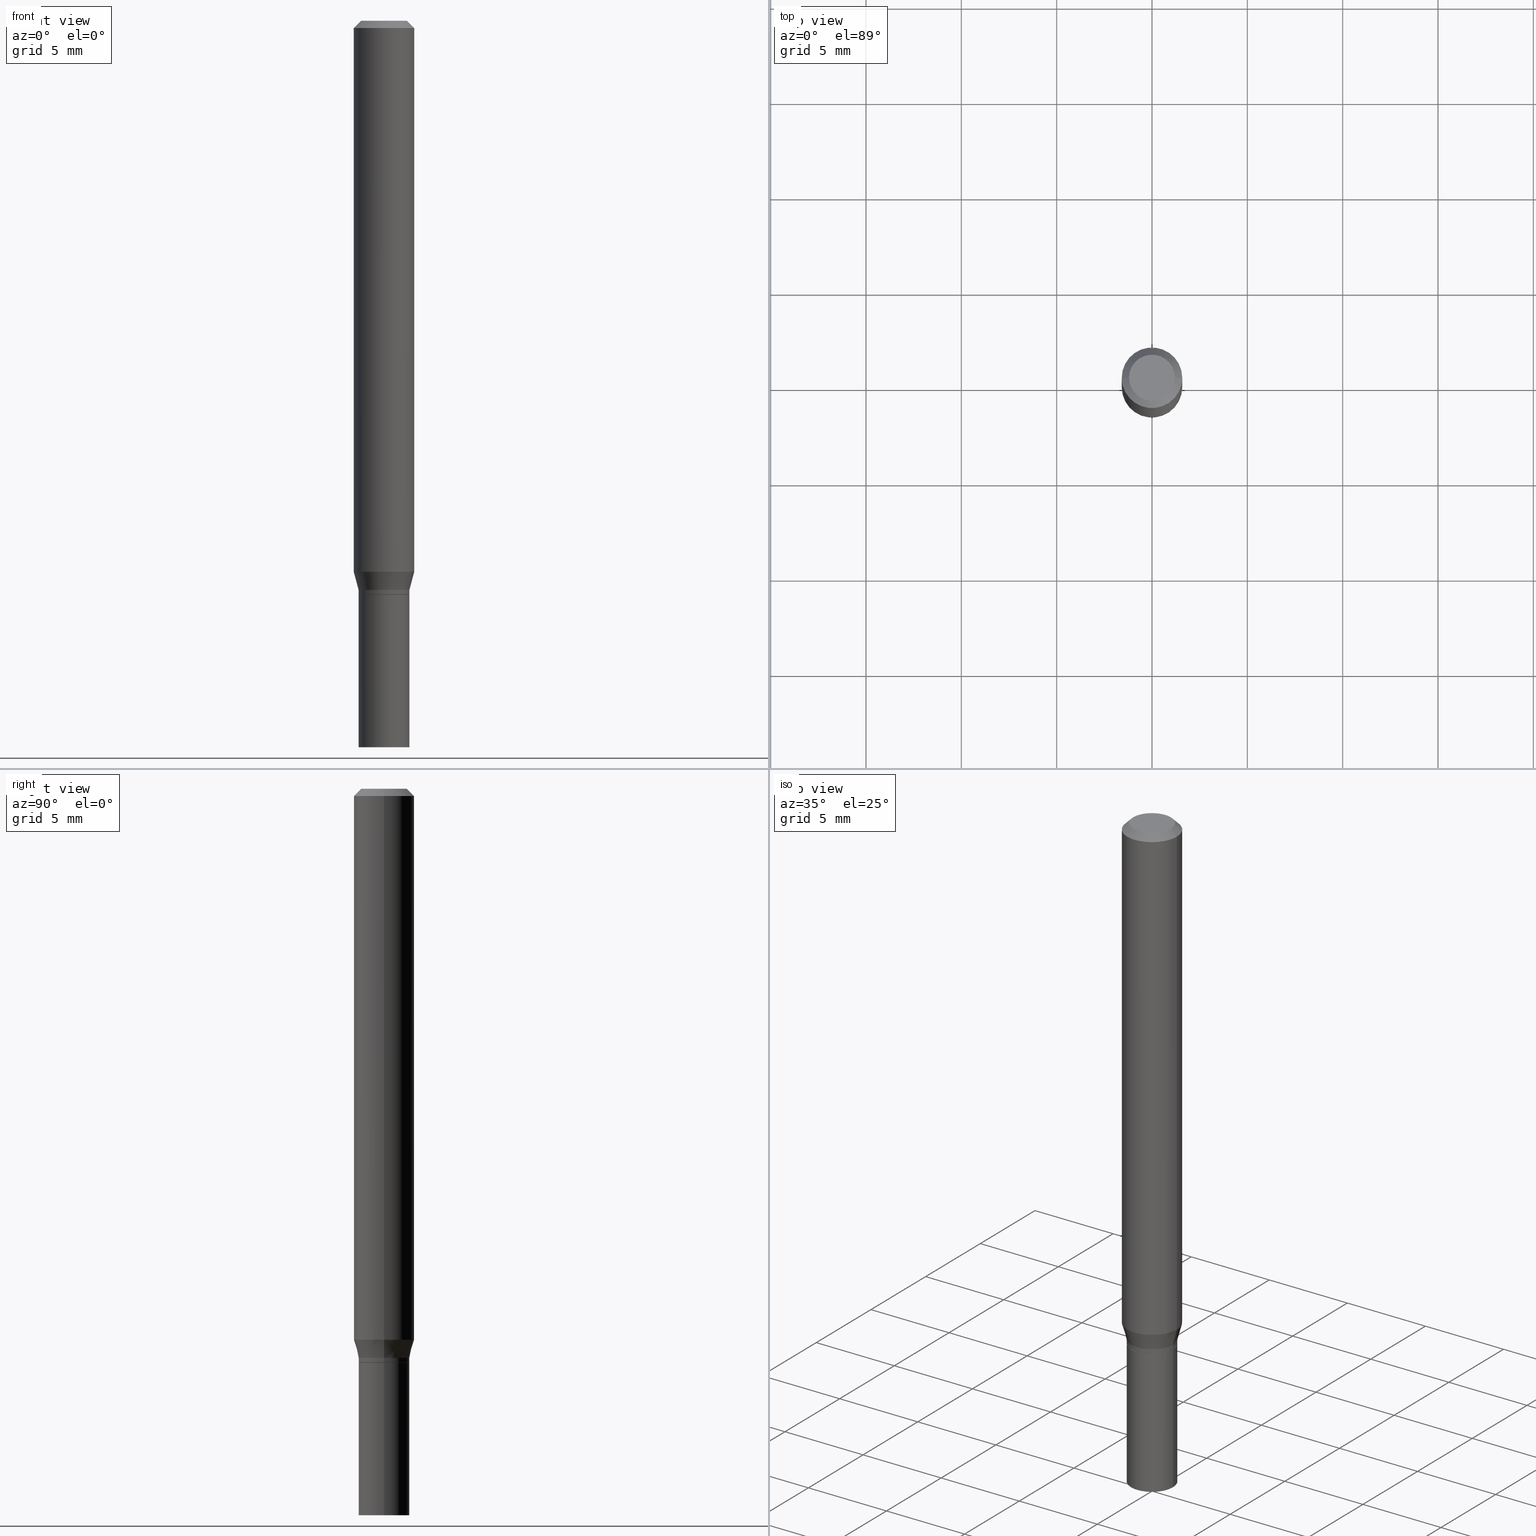
[diagram: canonical four-view strip — front | top / right | iso, engineering-drawing reading convention]
A machine part, canonical four-view strip (front | top / right | iso — engineering-drawing reading convention). The complete STEP part file that produces these views, byte-faithful:
ISO-10303-21;
HEADER;
FILE_DESCRIPTION (( 'STEP AP203' ),
    '1' );
FILE_NAME ('00580.STEP',
    '2024-03-19T21:49:55',
    ( '' ),
    ( '' ),
    'SwSTEP 2.0',
    'SolidWorks 2023',
    '' );
FILE_SCHEMA (( 'CONFIG_CONTROL_DESIGN' ));
ENDSEC;

DATA;
#1 = CARTESIAN_POINT ( 'NONE',  ( 3.668203209277705088E-31, -5.237222008264718399E-17, -0.01499999999999999944 ) ) ;
#2 = CC_DESIGN_PERSON_AND_ORGANIZATION_ASSIGNMENT ( #437, #71, ( #35 ) ) ;
#3 = PERSON_AND_ORGANIZATION_ROLE ( 'creator' ) ;
#4 = DIRECTION ( 'NONE',  ( 1.000000000000000000, -6.982962677686258822E-15, 0.000000000000000000 ) ) ;
#5 = CONICAL_SURFACE ( 'NONE', #410, 0.06250000000000000000, 0.7853981633974549403 ) ;
#6 = AXIS2_PLACEMENT_3D ( 'NONE', #274, #375, #200 ) ;
#7 = DIRECTION ( 'NONE',  ( -1.000000000000000000, 6.982962677686266711E-15, 0.000000000000000000 ) ) ;
#8 = DESIGN_CONTEXT ( 'detailed design', #392, 'design' ) ;
#9 = VECTOR ( 'NONE', #301, 39.37007874015748854 ) ;
#10 = PRODUCT_DEFINITION_FORMATION_WITH_SPECIFIED_SOURCE ( 'ANY', '', #97, .NOT_KNOWN. ) ;
#11 = DIRECTION ( 'NONE',  ( -2.438088387897960049E-29, 3.491481338843145188E-15, 1.000000000000000000 ) ) ;
#12 = CARTESIAN_POINT ( 'NONE',  ( 0.000000000000000000, 0.000000000000000000, 0.000000000000000000 ) ) ;
#13 = PLANE ( 'NONE',  #349 ) ;
#14 = ORIENTED_EDGE ( 'NONE', *, *, #134, .F. ) ;
#15 = CARTESIAN_POINT ( 'NONE',  ( 2.782159708937459233E-29, -3.972186715638284874E-15, -1.137679491924311614 ) ) ;
#16 = CARTESIAN_POINT ( 'NONE',  ( 0.04749999999999999362, -4.035134999187581581E-16, -1.989643822619502098E-16 ) ) ;
#17 = CIRCLE ( 'NONE', #225, 0.05249999999999999806 ) ;
#18 = LOCAL_TIME ( 17, 49, 55.00000000000000000, #140 ) ;
#19 = CYLINDRICAL_SURFACE ( 'NONE', #115, 0.05250000000000005357 ) ;
#20 = DIRECTION ( 'NONE',  ( -2.445468806185136877E-29, 3.491481338843145188E-15, 1.000000000000000000 ) ) ;
#21 = DIRECTION ( 'NONE',  ( -2.445468806185136597E-29, 3.491481338843145583E-15, 1.000000000000000000 ) ) ;
#22 = DIRECTION ( 'NONE',  ( 1.000000000000000000, -6.982962677686266711E-15, 0.000000000000000000 ) ) ;
#23 = ORIENTED_EDGE ( 'NONE', *, *, #77, .F. ) ;
#24 = EDGE_CURVE ( 'NONE', #138, #219, #378, .T. ) ;
#25 = DIRECTION ( 'NONE',  ( 2.438088387897960049E-29, -3.491481338843145188E-15, -1.000000000000000000 ) ) ;
#26 = AXIS2_PLACEMENT_3D ( 'NONE', #188, #177, #336 ) ;
#27 = PERSON ( 'UNSPECIFIED', 'UNSPECIFIED', 'UNSPECIFIED', ('UNSPECIFIED'), ('UNSPECIFIED'), ('UNSPECIFIED') ) ;
#28 = AXIS2_PLACEMENT_3D ( 'NONE', #217, #99, #214 ) ;
#29 = PLANE ( 'NONE',  #59 ) ;
#30 = DIRECTION ( 'NONE',  ( 1.000000000000000000, -6.982962677686258822E-15, 0.000000000000000000 ) ) ;
#31 = APPROVAL ( #358, 'UNSPECIFIED' ) ;
#32 = DATE_TIME_ROLE ( 'classification_date' ) ;
#33 = AXIS2_PLACEMENT_3D ( 'NONE', #1, #258, #364 ) ;
#34 = ORIENTED_EDGE ( 'NONE', *, *, #444, .F. ) ;
#35 = SECURITY_CLASSIFICATION ( '', '', #431 ) ;
#36 = APPLICATION_PROTOCOL_DEFINITION ( 'international standard', 'config_control_design', 1994, #404 ) ;
#37 = DIRECTION ( 'NONE',  ( 2.445468806185136597E-29, -3.491481338843145583E-15, -1.000000000000000000 ) ) ;
#38 = ORIENTED_EDGE ( 'NONE', *, *, #345, .T. ) ;
#39 = EDGE_CURVE ( 'NONE', #205, #180, #160, .T. ) ;
#40 =( NAMED_UNIT ( * ) SI_UNIT ( $, .STERADIAN. ) SOLID_ANGLE_UNIT ( ) );
#41 = DIRECTION ( 'NONE',  ( 1.000000000000000000, -6.982962677686269866E-15, 0.000000000000000000 ) ) ;
#42 =( NAMED_UNIT ( * ) PLANE_ANGLE_UNIT ( ) SI_UNIT ( $, .RADIAN. ) );
#43 = CARTESIAN_POINT ( 'NONE',  ( 2.873425847267535838E-29, -4.102490573140696681E-15, -1.175000000000000266 ) ) ;
#44 = ORIENTED_EDGE ( 'NONE', *, *, #324, .F. ) ;
#45 = CIRCLE ( 'NONE', #26, 0.05199999999999999067 ) ;
#46 = ORIENTED_EDGE ( 'NONE', *, *, #347, .F. ) ;
#47 = ORIENTED_EDGE ( 'NONE', *, *, #459, .T. ) ;
#48 = EDGE_CURVE ( 'NONE', #126, #219, #461, .T. ) ;
#49 = CLOSED_SHELL ( 'NONE', ( #149, #193, #450, #408 ) ) ;
#50 = AXIS2_PLACEMENT_3D ( 'NONE', #253, #80, #191 ) ;
#51 = EDGE_LOOP ( 'NONE', ( #230, #47, #212, #34 ) ) ;
#52 = DIRECTION ( 'NONE',  ( 1.000000000000000000, -6.982962677686265922E-15, 4.876176775795935793E-29 ) ) ;
#53 = PRODUCT_RELATED_PRODUCT_CATEGORY ( 'detail', '', ( #97 ) ) ;
#54 = CARTESIAN_POINT ( 'NONE',  ( -0.06250000000000000000, -1.568190258010403558E-15, -0.01499999999999999944 ) ) ;
#55 = DIRECTION ( 'NONE',  ( -2.445468806185136877E-29, 3.491481338843145188E-15, 1.000000000000000000 ) ) ;
#56 = DIRECTION ( 'NONE',  ( -0.7071067811865656694, 7.493145998870420424E-15, 0.7071067811865294761 ) ) ;
#57 = DIRECTION ( 'NONE',  ( -2.445468806185136877E-29, 3.491481338843145188E-15, 1.000000000000000000 ) ) ;
#58 = PLANE ( 'NONE',  #202 ) ;
#59 = AXIS2_PLACEMENT_3D ( 'NONE', #163, #25, #423 ) ;
#60 = LOCAL_TIME ( 17, 49, 55.00000000000000000, #109 ) ;
#61 = LINE ( 'NONE', #339, #341 ) ;
#62 = ORIENTED_EDGE ( 'NONE', *, *, #296, .F. ) ;
#63 = EDGE_CURVE ( 'NONE', #318, #205, #197, .T. ) ;
#64 = FACE_OUTER_BOUND ( 'NONE', #333, .T. ) ;
#65 = VECTOR ( 'NONE', #57, 39.37007874015748143 ) ;
#66 = AXIS2_PLACEMENT_3D ( 'NONE', #380, #240, #125 ) ;
#67 = DATE_AND_TIME ( #245, #18 ) ;
#68 = PERSON_AND_ORGANIZATION ( #27, #159 ) ;
#69 = ORIENTED_EDGE ( 'NONE', *, *, #424, .F. ) ;
#70 = ORIENTED_EDGE ( 'NONE', *, *, #63, .F. ) ;
#71 = PERSON_AND_ORGANIZATION_ROLE ( 'classification_officer' ) ;
#72 = CIRCLE ( 'NONE', #305, 0.05199999999999999067 ) ;
#73 = CARTESIAN_POINT ( 'NONE',  ( -0.05249999999999999806, -4.314278761122870719E-15, -1.500000000000000222 ) ) ;
#74 = ORIENTED_EDGE ( 'NONE', *, *, #48, .T. ) ;
#75 = DIRECTION ( 'NONE',  ( -0.2588190451025211836, 5.211531920934547886E-15, 0.9659258262890679791 ) ) ;
#76 = CALENDAR_DATE ( 2024, 19, 3 ) ;
#77 = EDGE_CURVE ( 'NONE', #247, #340, #435, .T. ) ;
#78 = DIRECTION ( 'NONE',  ( -2.445468806185136597E-29, 3.491481338843145583E-15, 1.000000000000000000 ) ) ;
#79 = DIRECTION ( 'NONE',  ( -2.445468806185136597E-29, 3.491481338843145583E-15, 1.000000000000000000 ) ) ;
#80 = DIRECTION ( 'NONE',  ( -2.445468806185136597E-29, 3.491481338843145583E-15, 1.000000000000000000 ) ) ;
#81 = ORIENTED_EDGE ( 'NONE', *, *, #223, .T. ) ;
#82 = DIRECTION ( 'NONE',  ( 1.000000000000000000, -6.982962677686268288E-15, 0.000000000000000000 ) ) ;
#83 = CONICAL_SURFACE ( 'NONE', #6, 0.05250000000000004663, 0.2617993877991499074 ) ;
#84 = CC_DESIGN_DATE_AND_TIME_ASSIGNMENT ( #458, #426, ( #261 ) ) ;
#85 = ORIENTED_EDGE ( 'NONE', *, *, #429, .F. ) ;
#86 = CARTESIAN_POINT ( 'NONE',  ( 2.897880535329387383E-29, -4.137405386529128330E-15, -1.185000000000000275 ) ) ;
#87 = ORIENTED_EDGE ( 'NONE', *, *, #384, .T. ) ;
#88 = DIRECTION ( 'NONE',  ( -2.445468806185136597E-29, 3.491481338843145583E-15, 1.000000000000000000 ) ) ;
#89 = CARTESIAN_POINT ( 'NONE',  ( 0.05199999999999999067, -4.500519445768813694E-15, -1.185000000000000275 ) ) ;
#90 = LINE ( 'NONE', #267, #65 ) ;
#91 = CARTESIAN_POINT ( 'NONE',  ( -0.05249999999999999806, 3.730349362740525838E-16, -2.582440922383825311E-30 ) ) ;
#92 = LINE ( 'NONE', #166, #277 ) ;
#93 = VERTEX_POINT ( 'NONE', #312 ) ;
#94 = EDGE_CURVE ( 'NONE', #318, #168, #90, .T. ) ;
#95 = DIRECTION ( 'NONE',  ( 1.000000000000000000, -6.982962677686270655E-15, 0.000000000000000000 ) ) ;
#96 = DIRECTION ( 'NONE',  ( 0.7071067811865656694, -2.468850131082446387E-15, 0.7071067811865294761 ) ) ;
#97 = PRODUCT ( '00580', '00580', '', ( #136 ) ) ;
#98 = FACE_OUTER_BOUND ( 'NONE', #145, .T. ) ;
#99 = DIRECTION ( 'NONE',  ( 0.000000000000000000, 0.000000000000000000, 1.000000000000000000 ) ) ;
#100 = CC_DESIGN_APPROVAL ( #376, ( #35 ) ) ;
#101 = APPROVAL_STATUS ( 'not_yet_approved' ) ;
#102 = APPROVAL_DATE_TIME ( #139, #376 ) ;
#103 = ORIENTED_EDGE ( 'NONE', *, *, #94, .T. ) ;
#104 = APPROVAL_STATUS ( 'not_yet_approved' ) ;
#105 = ADVANCED_FACE ( 'NONE', ( #196 ), #309, .T. ) ;
#106 = CARTESIAN_POINT ( 'NONE',  ( 0.06250000000000000000, -4.408621882993677332E-15, -1.137679491924311614 ) ) ;
#107 = CIRCLE ( 'NONE', #297, 0.05250000000000005357 ) ;
#108 = DIRECTION ( 'NONE',  ( -2.445468806185136597E-29, 3.491481338843145583E-15, 1.000000000000000000 ) ) ;
#109 = COORDINATED_UNIVERSAL_TIME_OFFSET ( 5, 0, .BEHIND. ) ;
#110 = DIRECTION ( 'NONE',  ( 1.000000000000000000, -6.982962677686261977E-15, 0.000000000000000000 ) ) ;
#111 = CARTESIAN_POINT ( 'NONE',  ( 2.897880535329387383E-29, -4.137405386529128330E-15, -1.185000000000000275 ) ) ;
#112 = CC_DESIGN_PERSON_AND_ORGANIZATION_ASSIGNMENT ( #137, #291, ( #97 ) ) ;
#113 = ORIENTED_EDGE ( 'NONE', *, *, #459, .F. ) ;
#114 = CLOSED_SHELL ( 'NONE', ( #164, #154, #416, #462, #185, #457, #271, #207, #370, #190, #174, #105 ) ) ;
#115 = AXIS2_PLACEMENT_3D ( 'NONE', #233, #21, #386 ) ;
#116 = ORIENTED_EDGE ( 'NONE', *, *, #332, .T. ) ;
#117 = DIRECTION ( 'NONE',  ( 1.000000000000000000, -6.982962677686268288E-15, 0.000000000000000000 ) ) ;
#118 = CARTESIAN_POINT ( 'NONE',  ( 0.06250000000000000000, -4.364351673553916694E-16, 3.047610484872459871E-30 ) ) ;
#119 = VECTOR ( 'NONE', #231, 39.37007874015748143 ) ;
#120 = AXIS2_PLACEMENT_3D ( 'NONE', #229, #122, #232 ) ;
#121 = CC_DESIGN_APPROVAL ( #31, ( #261 ) ) ;
#122 = DIRECTION ( 'NONE',  ( -2.445468806185136597E-29, 3.491481338843145583E-15, 1.000000000000000000 ) ) ;
#123 = EDGE_LOOP ( 'NONE', ( #265, #302, #283, #344 ) ) ;
#124 = CARTESIAN_POINT ( 'NONE',  ( 2.897880535329387383E-29, -4.137405386529128330E-15, -1.185000000000000275 ) ) ;
#125 = DIRECTION ( 'NONE',  ( 1.000000000000000000, -6.982962677686268288E-15, 0.000000000000000000 ) ) ;
#126 = VERTEX_POINT ( 'NONE', #255 ) ;
#127 = APPROVAL ( #101, 'UNSPECIFIED' ) ;
#128 = EDGE_LOOP ( 'NONE', ( #290, #116, #280, #187 ) ) ;
#129 = DIRECTION ( 'NONE',  ( -2.445468806185136597E-29, 3.491481338843145583E-15, 1.000000000000000000 ) ) ;
#130 = CARTESIAN_POINT ( 'NONE',  ( 0.000000000000000000, 0.000000000000000000, 0.000000000000000000 ) ) ;
#131 = VECTOR ( 'NONE', #56, 39.37007874015748143 ) ;
#132 = CARTESIAN_POINT ( 'NONE',  ( 3.316907271900976096E-16, 0.04749999999999999362, -2.653275547260257586E-16 ) ) ;
#133 =( CONVERSION_BASED_UNIT ( 'INCH', #385 ) LENGTH_UNIT ( ) NAMED_UNIT ( #434 ) );
#134 = EDGE_CURVE ( 'NONE', #402, #460, #440, .T. ) ;
#135 = CARTESIAN_POINT ( 'NONE',  ( 2.897880535329387383E-29, -4.137405386529128330E-15, -1.185000000000000275 ) ) ;
#136 = MECHANICAL_CONTEXT ( 'NONE', #404, 'mechanical' ) ;
#137 = PERSON_AND_ORGANIZATION ( #27, #159 ) ;
#138 = VERTEX_POINT ( 'NONE', #106 ) ;
#139 = DATE_AND_TIME ( #76, #331 ) ;
#140 = COORDINATED_UNIVERSAL_TIME_OFFSET ( 5, 0, .BEHIND. ) ;
#141 = CARTESIAN_POINT ( 'NONE',  ( -0.05250000000000005357, -3.762624709585653503E-15, -1.184500000000000108 ) ) ;
#142 = EDGE_LOOP ( 'NONE', ( #308, #446 ) ) ;
#143 = CALENDAR_DATE ( 2024, 19, 3 ) ;
#144 = CARTESIAN_POINT ( 'NONE',  ( 3.668203209277705088E-31, -5.237222008264718399E-17, -0.01499999999999999944 ) ) ;
#145 = EDGE_LOOP ( 'NONE', ( #183, #399 ) ) ;
#146 = CONICAL_SURFACE ( 'NONE', #210, 0.05250000000000004663, 0.2617993877991499074 ) ;
#147 = LINE ( 'NONE', #451, #357 ) ;
#148 = EDGE_LOOP ( 'NONE', ( #173, #74, #337, #327 ) ) ;
#149 = ADVANCED_FACE ( 'NONE', ( #366 ), #443, .T. ) ;
#150 = FACE_OUTER_BOUND ( 'NONE', #263, .T. ) ;
#151 = CIRCLE ( 'NONE', #66, 0.05249999999999999806 ) ;
#152 = UNCERTAINTY_MEASURE_WITH_UNIT (LENGTH_MEASURE( 1.000000000000000082E-05 ), #133, 'distance_accuracy_value', 'NONE');
#153 = CIRCLE ( 'NONE', #50, 0.04749999999999999362 ) ;
#154 = ADVANCED_FACE ( 'NONE', ( #373 ), #292, .T. ) ;
#155 = CARTESIAN_POINT ( 'NONE',  ( 3.576687321579069994E-29, -5.368277968210015545E-15, -1.500000000000000222 ) ) ;
#156 = ORIENTED_EDGE ( 'NONE', *, *, #216, .F. ) ;
#157 = DIRECTION ( 'NONE',  ( -2.445468806185136597E-29, 3.491481338843145583E-15, 1.000000000000000000 ) ) ;
#158 = AXIS2_PLACEMENT_3D ( 'NONE', #218, #37, #7 ) ;
#159 = ORGANIZATION ( 'UNSPECIFIED', 'UNSPECIFIED', '' ) ;
#160 = LINE ( 'NONE', #91, #119 ) ;
#161 = CARTESIAN_POINT ( 'NONE',  ( -0.05199999999999999067, -3.765273936759765493E-15, -1.185000000000000275 ) ) ;
#162 = CARTESIAN_POINT ( 'NONE',  ( 3.668203209277705088E-31, -5.237222008264718399E-17, -0.01499999999999999944 ) ) ;
#163 = CARTESIAN_POINT ( 'NONE',  ( 3.666055405785579535E-16, 0.05249999999999585554, -1.185000000000000275 ) ) ;
#164 = ADVANCED_FACE ( 'NONE', ( #449 ), #19, .T. ) ;
#165 = CIRCLE ( 'NONE', #33, 0.06250000000000000000 ) ;
#166 = CARTESIAN_POINT ( 'NONE',  ( -0.06250000000000000000, 3.840629472727444916E-16, -0.01499999999999999944 ) ) ;
#167 = APPROVAL_DATE_TIME ( #179, #31 ) ;
#168 = VERTEX_POINT ( 'NONE', #201 ) ;
#169 = VECTOR ( 'NONE', #75, 39.37007874015748854 ) ;
#170 = CIRCLE ( 'NONE', #454, 0.05250000000000004663 ) ;
#171 = CC_DESIGN_PERSON_AND_ORGANIZATION_ASSIGNMENT ( #246, #389, ( #10 ) ) ;
#172 = CARTESIAN_POINT ( 'NONE',  ( -0.06250000000000000000, -3.528097505788222652E-15, -1.137679491924311614 ) ) ;
#173 = ORIENTED_EDGE ( 'NONE', *, *, #278, .T. ) ;
#174 = ADVANCED_FACE ( 'NONE', ( #425 ), #184, .T. ) ;
#175 = ORIENTED_EDGE ( 'NONE', *, *, #178, .F. ) ;
#176 = DIRECTION ( 'NONE',  ( 1.000000000000000000, -6.982962677686268288E-15, 0.000000000000000000 ) ) ;
#177 = DIRECTION ( 'NONE',  ( -2.445468806185136597E-29, 3.491481338843145583E-15, 1.000000000000000000 ) ) ;
#178 = EDGE_CURVE ( 'NONE', #138, #340, #189, .T. ) ;
#179 = DATE_AND_TIME ( #387, #422 ) ;
#180 = VERTEX_POINT ( 'NONE', #192 ) ;
#181 = CONICAL_SURFACE ( 'NONE', #158, 0.06250000000000000000, 0.7853981633974549403 ) ;
#182 = CARTESIAN_POINT ( 'NONE',  ( 0.05250000000000005357, -3.666055405785293573E-16, 2.559992807292869164E-30 ) ) ;
#183 = ORIENTED_EDGE ( 'NONE', *, *, #296, .T. ) ;
#184 = CONICAL_SURFACE ( 'NONE', #406, 0.05199999999999999067, 0.7853981633974739252 ) ;
#185 = ADVANCED_FACE ( 'NONE', ( #287 ), #146, .T. ) ;
#186 = CC_DESIGN_SECURITY_CLASSIFICATION ( #35, ( #10 ) ) ;
#187 = ORIENTED_EDGE ( 'NONE', *, *, #252, .F. ) ;
#188 = CARTESIAN_POINT ( 'NONE',  ( 2.897880535329387383E-29, -4.137405386529128330E-15, -1.185000000000000275 ) ) ;
#189 = LINE ( 'NONE', #118, #395 ) ;
#190 = ADVANCED_FACE ( 'NONE', ( #393 ), #13, .F. ) ;
#191 = DIRECTION ( 'NONE',  ( 1.000000000000000000, -6.982962677686267499E-15, 4.852736867747366768E-29 ) ) ;
#192 = CARTESIAN_POINT ( 'NONE',  ( -0.05249999999999999806, -4.314278761122870719E-15, -1.185000000000000275 ) ) ;
#193 = ADVANCED_FACE ( 'NONE', ( #334 ), #211, .F. ) ;
#194 = CARTESIAN_POINT ( 'NONE',  ( 0.06250000000000000000, -4.811533449433679005E-16, -0.01499999999999999944 ) ) ;
#195 = ORIENTED_EDGE ( 'NONE', *, *, #413, .F. ) ;
#196 = FACE_OUTER_BOUND ( 'NONE', #128, .T. ) ;
#197 = CIRCLE ( 'NONE', #314, 0.05249999999999999806 ) ;
#198 = VECTOR ( 'NONE', #96, 39.37007874015748143 ) ;
#199 = CARTESIAN_POINT ( 'NONE',  ( -0.05199999999999999067, -3.767923163933875905E-15, -1.185000000000000275 ) ) ;
#200 = DIRECTION ( 'NONE',  ( 1.000000000000000000, -6.982962677686261977E-15, 0.000000000000000000 ) ) ;
#201 = CARTESIAN_POINT ( 'NONE',  ( 0.05249999999999999806, -4.504010927107657490E-15, -1.185000000000000275 ) ) ;
#202 = AXIS2_PLACEMENT_3D ( 'NONE', #132, #343, #351 ) ;
#203 = CARTESIAN_POINT ( 'NONE',  ( 0.05250000000000005357, -4.502265186438235986E-15, -1.184500000000000108 ) ) ;
#204 = APPROVAL_DATE_TIME ( #67, #127 ) ;
#205 = VERTEX_POINT ( 'NONE', #73 ) ;
#206 = CALENDAR_DATE ( 2024, 19, 3 ) ;
#207 = ADVANCED_FACE ( 'NONE', ( #401 ), #181, .T. ) ;
#208 = EDGE_LOOP ( 'NONE', ( #113, #14, #372, #445 ) ) ;
#209 = COORDINATED_UNIVERSAL_TIME_OFFSET ( 5, 0, .BEHIND. ) ;
#210 = AXIS2_PLACEMENT_3D ( 'NONE', #430, #397, #249 ) ;
#211 = PLANE ( 'NONE',  #441 ) ;
#212 = ORIENTED_EDGE ( 'NONE', *, *, #241, .T. ) ;
#213 = CARTESIAN_POINT ( 'NONE',  ( 3.668203209277704895E-29, -5.237222008264718177E-15, -1.500000000000000222 ) ) ;
#214 = DIRECTION ( 'NONE',  ( 1.000000000000000000, 0.000000000000000000, 0.000000000000000000 ) ) ;
#215 = DIRECTION ( 'NONE',  ( 1.000000000000000000, -6.982962677686269866E-15, 0.000000000000000000 ) ) ;
#216 = EDGE_CURVE ( 'NONE', #205, #318, #244, .T. ) ;
#217 = CARTESIAN_POINT ( 'NONE',  ( 0.000000000000000000, 0.000000000000000000, 0.000000000000000000 ) ) ;
#218 = CARTESIAN_POINT ( 'NONE',  ( 3.668203209277705088E-31, -5.237222008264718399E-17, -0.01499999999999999944 ) ) ;
#219 = VERTEX_POINT ( 'NONE', #172 ) ;
#220 = VECTOR ( 'NONE', #433, 39.37007874015748143 ) ;
#221 = CARTESIAN_POINT ( 'NONE',  ( 2.896657800926294581E-29, -4.135659645859706826E-15, -1.184500000000000108 ) ) ;
#222 = ORIENTED_EDGE ( 'NONE', *, *, #413, .T. ) ;
#223 = EDGE_CURVE ( 'NONE', #335, #138, #328, .T. ) ;
#224 = ORIENTED_EDGE ( 'NONE', *, *, #241, .F. ) ;
#225 = AXIS2_PLACEMENT_3D ( 'NONE', #111, #398, #117 ) ;
#226 = APPROVAL_PERSON_ORGANIZATION ( #396, #31, #320 ) ;
#227 = DIRECTION ( 'NONE',  ( -2.445468806185136597E-29, 3.491481338843145583E-15, 1.000000000000000000 ) ) ;
#228 = DIRECTION ( 'NONE',  ( 1.000000000000000000, -6.982962677686265922E-15, 4.876176775795935232E-29 ) ) ;
#229 = CARTESIAN_POINT ( 'NONE',  ( 0.000000000000000000, 0.000000000000000000, 0.000000000000000000 ) ) ;
#230 = ORIENTED_EDGE ( 'NONE', *, *, #282, .F. ) ;
#231 = DIRECTION ( 'NONE',  ( -2.445468806185136877E-29, 3.491481338843145188E-15, 1.000000000000000000 ) ) ;
#232 = DIRECTION ( 'NONE',  ( 1.000000000000000000, -6.982962677686265922E-15, 4.876176775795935232E-29 ) ) ;
#233 = CARTESIAN_POINT ( 'NONE',  ( 0.000000000000000000, 0.000000000000000000, 0.000000000000000000 ) ) ;
#234 = AXIS2_PLACEMENT_3D ( 'NONE', #130, #325, #391 ) ;
#235 = CC_DESIGN_APPROVAL ( #127, ( #10 ) ) ;
#236 = LINE ( 'NONE', #89, #198 ) ;
#237 = EDGE_LOOP ( 'NONE', ( #46, #264 ) ) ;
#238 = ORIENTED_EDGE ( 'NONE', *, *, #252, .T. ) ;
#239 = CARTESIAN_POINT ( 'NONE',  ( -0.05250000000000004663, -3.729455636866644146E-15, -1.175000000000000266 ) ) ;
#240 = DIRECTION ( 'NONE',  ( -2.445468806185136597E-29, 3.491481338843145583E-15, 1.000000000000000000 ) ) ;
#241 = EDGE_CURVE ( 'NONE', #340, #247, #165, .T. ) ;
#242 = ORIENTED_EDGE ( 'NONE', *, *, #24, .T. ) ;
#243 = FACE_OUTER_BOUND ( 'NONE', #51, .T. ) ;
#244 = CIRCLE ( 'NONE', #315, 0.05249999999999999806 ) ;
#245 = CALENDAR_DATE ( 2024, 19, 3 ) ;
#246 = PERSON_AND_ORGANIZATION ( #27, #159 ) ;
#247 = VERTEX_POINT ( 'NONE', #54 ) ;
#248 = ORIENTED_EDGE ( 'NONE', *, *, #178, .T. ) ;
#249 = DIRECTION ( 'NONE',  ( 1.000000000000000000, -6.982962677686261977E-15, 0.000000000000000000 ) ) ;
#250 = APPLICATION_PROTOCOL_DEFINITION ( 'international standard', 'config_control_design', 1994, #392 ) ;
#251 = CIRCLE ( 'NONE', #436, 0.05250000000000004663 ) ;
#252 = EDGE_CURVE ( 'NONE', #126, #335, #170, .T. ) ;
#253 = CARTESIAN_POINT ( 'NONE',  ( 4.865611903635008365E-45, -6.946804277620623666E-31, -1.989643822619527736E-16 ) ) ;
#254 = EDGE_LOOP ( 'NONE', ( #242, #222, #224, #175 ) ) ;
#255 = CARTESIAN_POINT ( 'NONE',  ( -0.05250000000000004663, -3.628776571327433202E-15, -1.175000000000000266 ) ) ;
#256 = APPROVAL_ROLE ( '' ) ;
#257 = VERTEX_POINT ( 'NONE', #141 ) ;
#258 = DIRECTION ( 'NONE',  ( -2.445468806185136597E-29, 3.491481338843145583E-15, 1.000000000000000000 ) ) ;
#259 = CARTESIAN_POINT ( 'NONE',  ( 0.05249999999999999806, -5.603827548843247337E-15, -1.500000000000000222 ) ) ;
#260 = AXIS2_PLACEMENT_3D ( 'NONE', #362, #368, #41 ) ;
#261 = PRODUCT_DEFINITION ( 'UNKNOWN', '', #10, #8 ) ;
#262 = EDGE_LOOP ( 'NONE', ( #269, #365, #103, #286 ) ) ;
#263 = EDGE_LOOP ( 'NONE', ( #195, #394, #248, #23 ) ) ;
#264 = ORIENTED_EDGE ( 'NONE', *, *, #345, .F. ) ;
#265 = ORIENTED_EDGE ( 'NONE', *, *, #324, .T. ) ;
#266 = EDGE_CURVE ( 'NONE', #407, #335, #293, .T. ) ;
#267 = CARTESIAN_POINT ( 'NONE',  ( 0.05249999999999999806, -3.666055405785289629E-16, 2.559992807292866011E-30 ) ) ;
#268 = DIRECTION ( 'NONE',  ( 1.000000000000000000, -6.982962677686261977E-15, 0.000000000000000000 ) ) ;
#269 = ORIENTED_EDGE ( 'NONE', *, *, #39, .F. ) ;
#270 = AXIS2_PLACEMENT_3D ( 'NONE', #144, #294, #22 ) ;
#271 = ADVANCED_FACE ( 'NONE', ( #150 ), #447, .T. ) ;
#272 = AXIS2_PLACEMENT_3D ( 'NONE', #304, #439, #403 ) ;
#273 = DIRECTION ( 'NONE',  ( -2.445468806185136597E-29, 3.491481338843145583E-15, 1.000000000000000000 ) ) ;
#274 = CARTESIAN_POINT ( 'NONE',  ( 2.873425847267535838E-29, -4.102490573140696681E-15, -1.175000000000000266 ) ) ;
#275 = CARTESIAN_POINT ( 'NONE',  ( -0.04749999999999999362, 3.578768372314206562E-16, -1.989643822619551895E-16 ) ) ;
#276 = DIRECTION ( 'NONE',  ( 0.7071067811865522357, -7.319954787623271823E-15, -0.7071067811865427988 ) ) ;
#277 = VECTOR ( 'NONE', #307, 39.37007874015748143 ) ;
#278 = EDGE_CURVE ( 'NONE', #335, #126, #251, .T. ) ;
#279 = CYLINDRICAL_SURFACE ( 'NONE', #120, 0.05249999999999999806 ) ;
#280 = ORIENTED_EDGE ( 'NONE', *, *, #266, .T. ) ;
#281 = DIRECTION ( 'NONE',  ( 2.445468806185136597E-29, -3.491481338843145583E-15, -1.000000000000000000 ) ) ;
#282 = EDGE_CURVE ( 'NONE', #460, #402, #153, .T. ) ;
#283 = ORIENTED_EDGE ( 'NONE', *, *, #278, .F. ) ;
#284 = AXIS2_PLACEMENT_3D ( 'NONE', #12, #88, #228 ) ;
#285 = PERSON_AND_ORGANIZATION ( #27, #159 ) ;
#286 = ORIENTED_EDGE ( 'NONE', *, *, #432, .F. ) ;
#287 = FACE_OUTER_BOUND ( 'NONE', #148, .T. ) ;
#288 = PERSON_AND_ORGANIZATION_ROLE ( 'design_supplier' ) ;
#289 = DIRECTION ( 'NONE',  ( 1.000000000000000000, -6.982962677686265922E-15, 4.876176775795935793E-29 ) ) ;
#290 = ORIENTED_EDGE ( 'NONE', *, *, #360, .F. ) ;
#291 = PERSON_AND_ORGANIZATION_ROLE ( 'design_owner' ) ;
#292 = CONICAL_SURFACE ( 'NONE', #421, 0.05199999999999999067, 0.7853981633974739252 ) ;
#293 = LINE ( 'NONE', #182, #220 ) ;
#294 = DIRECTION ( 'NONE',  ( -2.445468806185136597E-29, 3.491481338843145583E-15, 1.000000000000000000 ) ) ;
#295 = CARTESIAN_POINT ( 'NONE',  ( 3.668203209277704895E-29, -5.237222008264718177E-15, -1.500000000000000222 ) ) ;
#296 = EDGE_CURVE ( 'NONE', #168, #180, #17, .T. ) ;
#297 = AXIS2_PLACEMENT_3D ( 'NONE', #221, #78, #215 ) ;
#298 = APPROVAL_PERSON_ORGANIZATION ( #319, #376, #256 ) ;
#299 = EDGE_LOOP ( 'NONE', ( #303, #87, #44, #85 ) ) ;
#300 = CC_DESIGN_DATE_AND_TIME_ASSIGNMENT ( #354, #32, ( #35 ) ) ;
#301 = DIRECTION ( 'NONE',  ( 0.2588190451025211836, 1.565188264969622559E-15, 0.9659258262890679791 ) ) ;
#302 = ORIENTED_EDGE ( 'NONE', *, *, #360, .T. ) ;
#303 = ORIENTED_EDGE ( 'NONE', *, *, #347, .T. ) ;
#304 = CARTESIAN_POINT ( 'NONE',  ( 0.000000000000000000, 0.000000000000000000, 0.000000000000000000 ) ) ;
#305 = AXIS2_PLACEMENT_3D ( 'NONE', #86, #326, #4 ) ;
#306 = DIRECTION ( 'NONE',  ( -2.445468806185136597E-29, 3.491481338843145583E-15, 1.000000000000000000 ) ) ;
#307 = DIRECTION ( 'NONE',  ( -0.7071067811865522357, 2.468850131082306364E-15, -0.7071067811865427988 ) ) ;
#308 = ORIENTED_EDGE ( 'NONE', *, *, #134, .T. ) ;
#309 = CYLINDRICAL_SURFACE ( 'NONE', #234, 0.05250000000000005357 ) ;
#310 = ADVANCED_BREP_SHAPE_REPRESENTATION ( '00580', ( #412, #417, #28 ), #455 ) ;
#311 = FACE_OUTER_BOUND ( 'NONE', #142, .T. ) ;
#312 = CARTESIAN_POINT ( 'NONE',  ( 0.05199999999999999067, -4.500519445768813694E-15, -1.185000000000000275 ) ) ;
#313 = LINE ( 'NONE', #194, #427 ) ;
#314 = AXIS2_PLACEMENT_3D ( 'NONE', #213, #330, #176 ) ;
#315 = AXIS2_PLACEMENT_3D ( 'NONE', #295, #157, #82 ) ;
#316 = FACE_OUTER_BOUND ( 'NONE', #262, .T. ) ;
#317 = CARTESIAN_POINT ( 'NONE',  ( 2.782159708937459233E-29, -3.972186715638284874E-15, -1.137679491924311614 ) ) ;
#318 = VERTEX_POINT ( 'NONE', #259 ) ;
#319 = PERSON_AND_ORGANIZATION ( #27, #159 ) ;
#320 = APPROVAL_ROLE ( '' ) ;
#321 = DIRECTION ( 'NONE',  ( 1.000000000000000000, -6.982962677686267499E-15, 4.852736867747366768E-29 ) ) ;
#322 = CARTESIAN_POINT ( 'NONE',  ( 0.05250000000000004663, -4.469096113719225841E-15, -1.175000000000000266 ) ) ;
#323 = EDGE_LOOP ( 'NONE', ( #70, #156 ) ) ;
#324 = EDGE_CURVE ( 'NONE', #407, #257, #107, .T. ) ;
#325 = DIRECTION ( 'NONE',  ( -2.445468806185136597E-29, 3.491481338843145583E-15, 1.000000000000000000 ) ) ;
#326 = DIRECTION ( 'NONE',  ( -2.445468806185136597E-29, 3.491481338843145583E-15, 1.000000000000000000 ) ) ;
#327 = ORIENTED_EDGE ( 'NONE', *, *, #223, .F. ) ;
#328 = LINE ( 'NONE', #322, #9 ) ;
#329 = CC_DESIGN_PERSON_AND_ORGANIZATION_ASSIGNMENT ( #285, #3, ( #261 ) ) ;
#330 = DIRECTION ( 'NONE',  ( -2.445468806185136597E-29, 3.491481338843145583E-15, 1.000000000000000000 ) ) ;
#331 = LOCAL_TIME ( 17, 49, 55.00000000000000000, #465 ) ;
#332 = EDGE_CURVE ( 'NONE', #257, #407, #369, .T. ) ;
#333 = EDGE_LOOP ( 'NONE', ( #456, #238, #81, #69 ) ) ;
#334 = FACE_OUTER_BOUND ( 'NONE', #323, .T. ) ;
#335 = VERTEX_POINT ( 'NONE', #371 ) ;
#336 = DIRECTION ( 'NONE',  ( 1.000000000000000000, -6.982962677686258822E-15, 0.000000000000000000 ) ) ;
#337 = ORIENTED_EDGE ( 'NONE', *, *, #24, .F. ) ;
#338 = ORIENTED_EDGE ( 'NONE', *, *, #94, .F. ) ;
#339 = CARTESIAN_POINT ( 'NONE',  ( -0.06250000000000000000, 4.440892098500626162E-16, -3.074334431409316114E-30 ) ) ;
#340 = VERTEX_POINT ( 'NONE', #409 ) ;
#341 = VECTOR ( 'NONE', #20, 39.37007874015748143 ) ;
#342 = AXIS2_PLACEMENT_3D ( 'NONE', #377, #129, #420 ) ;
#343 = DIRECTION ( 'NONE',  ( 2.438088387897960049E-29, -3.491481338843145188E-15, -1.000000000000000000 ) ) ;
#344 = ORIENTED_EDGE ( 'NONE', *, *, #266, .F. ) ;
#345 = EDGE_CURVE ( 'NONE', #367, #93, #45, .T. ) ;
#346 =( LENGTH_UNIT ( ) NAMED_UNIT ( * ) SI_UNIT ( $, .METRE. ) );
#347 = EDGE_CURVE ( 'NONE', #93, #367, #72, .T. ) ;
#348 = DIRECTION ( 'NONE',  ( -2.445468806185136877E-29, 3.491481338843145188E-15, 1.000000000000000000 ) ) ;
#349 = AXIS2_PLACEMENT_3D ( 'NONE', #361, #11, #289 ) ;
#350 = CC_DESIGN_PERSON_AND_ORGANIZATION_ASSIGNMENT ( #68, #288, ( #10 ) ) ;
#351 = DIRECTION ( 'NONE',  ( -1.000000000000000000, 6.982962677686265922E-15, -4.876176775795935793E-29 ) ) ;
#352 = DIRECTION ( 'NONE',  ( -2.445468806185136597E-29, 3.491481338843145583E-15, 1.000000000000000000 ) ) ;
#353 = APPROVAL_ROLE ( '' ) ;
#354 = DATE_AND_TIME ( #206, #60 ) ;
#355 = AXIS2_PLACEMENT_3D ( 'NONE', #317, #383, #95 ) ;
#356 = CARTESIAN_POINT ( 'NONE',  ( 4.865611903635008365E-45, -6.946804277620623666E-31, -1.989643822619527736E-16 ) ) ;
#357 = VECTOR ( 'NONE', #348, 39.37007874015748143 ) ;
#358 = APPROVAL_STATUS ( 'not_yet_approved' ) ;
#359 = APPROVAL_PERSON_ORGANIZATION ( #466, #127, #353 ) ;
#360 = EDGE_CURVE ( 'NONE', #257, #126, #147, .T. ) ;
#361 = CARTESIAN_POINT ( 'NONE',  ( 2.897880535329387383E-29, -4.137405386529128330E-15, -1.185000000000000275 ) ) ;
#362 = CARTESIAN_POINT ( 'NONE',  ( 2.896657800926294581E-29, -4.135659645859706826E-15, -1.184500000000000108 ) ) ;
#363 = ORIENTED_EDGE ( 'NONE', *, *, #384, .F. ) ;
#364 = DIRECTION ( 'NONE',  ( 1.000000000000000000, -6.982962677686266711E-15, 0.000000000000000000 ) ) ;
#365 = ORIENTED_EDGE ( 'NONE', *, *, #216, .T. ) ;
#366 = FACE_OUTER_BOUND ( 'NONE', #374, .T. ) ;
#367 = VERTEX_POINT ( 'NONE', #161 ) ;
#368 = DIRECTION ( 'NONE',  ( -2.445468806185136597E-29, 3.491481338843145583E-15, 1.000000000000000000 ) ) ;
#369 = CIRCLE ( 'NONE', #260, 0.05250000000000005357 ) ;
#370 = ADVANCED_FACE ( 'NONE', ( #311 ), #58, .F. ) ;
#371 = CARTESIAN_POINT ( 'NONE',  ( 0.05250000000000004663, -4.469096113719225841E-15, -1.175000000000000266 ) ) ;
#372 = ORIENTED_EDGE ( 'NONE', *, *, #444, .T. ) ;
#373 = FACE_OUTER_BOUND ( 'NONE', #299, .T. ) ;
#374 = EDGE_LOOP ( 'NONE', ( #411, #464, #62, #338 ) ) ;
#375 = DIRECTION ( 'NONE',  ( -2.445468806185136597E-29, 3.491481338843145583E-15, 1.000000000000000000 ) ) ;
#376 = APPROVAL ( #104, 'UNSPECIFIED' ) ;
#377 = CARTESIAN_POINT ( 'NONE',  ( 0.000000000000000000, 0.000000000000000000, 0.000000000000000000 ) ) ;
#378 = CIRCLE ( 'NONE', #405, 0.06250000000000000000 ) ;
#379 = CIRCLE ( 'NONE', #355, 0.06250000000000000000 ) ;
#380 = CARTESIAN_POINT ( 'NONE',  ( 2.897880535329387383E-29, -4.137405386529128330E-15, -1.185000000000000275 ) ) ;
#381 = ORIENTED_EDGE ( 'NONE', *, *, #332, .F. ) ;
#382 = PRODUCT_DEFINITION_SHAPE ( 'NONE', 'NONE',  #261 ) ;
#383 = DIRECTION ( 'NONE',  ( -2.445468806185136597E-29, 3.491481338843145583E-15, 1.000000000000000000 ) ) ;
#384 = EDGE_CURVE ( 'NONE', #367, #257, #414, .T. ) ;
#385 = LENGTH_MEASURE_WITH_UNIT ( LENGTH_MEASURE( 0.02539999999999999897 ), #346 );
#386 = DIRECTION ( 'NONE',  ( 1.000000000000000000, -6.982962677686266711E-15, 4.876176775795936353E-29 ) ) ;
#387 = CALENDAR_DATE ( 2024, 19, 3 ) ;
#388 = ORIENTED_EDGE ( 'NONE', *, *, #429, .T. ) ;
#389 = PERSON_AND_ORGANIZATION_ROLE ( 'creator' ) ;
#390 = EDGE_LOOP ( 'NONE', ( #363, #38, #388, #381 ) ) ;
#391 = DIRECTION ( 'NONE',  ( 1.000000000000000000, -6.982962677686266711E-15, 4.876176775795936353E-29 ) ) ;
#392 = APPLICATION_CONTEXT ( 'configuration controlled 3d designs of mechanical parts and assemblies' ) ;
#393 = FACE_OUTER_BOUND ( 'NONE', #237, .T. ) ;
#394 = ORIENTED_EDGE ( 'NONE', *, *, #424, .T. ) ;
#395 = VECTOR ( 'NONE', #55, 39.37007874015748143 ) ;
#396 = PERSON_AND_ORGANIZATION ( #27, #159 ) ;
#397 = DIRECTION ( 'NONE',  ( -2.445468806185136597E-29, 3.491481338843145583E-15, 1.000000000000000000 ) ) ;
#398 = DIRECTION ( 'NONE',  ( -2.445468806185136597E-29, 3.491481338843145583E-15, 1.000000000000000000 ) ) ;
#399 = ORIENTED_EDGE ( 'NONE', *, *, #432, .T. ) ;
#400 = SHAPE_DEFINITION_REPRESENTATION ( #382, #310 ) ;
#401 = FACE_OUTER_BOUND ( 'NONE', #208, .T. ) ;
#402 = VERTEX_POINT ( 'NONE', #275 ) ;
#403 = DIRECTION ( 'NONE',  ( 1.000000000000000000, -6.982962677686266711E-15, 4.876176775795935793E-29 ) ) ;
#404 = APPLICATION_CONTEXT ( 'configuration controlled 3d designs of mechanical parts and assemblies' ) ;
#405 = AXIS2_PLACEMENT_3D ( 'NONE', #15, #306, #418 ) ;
#406 = AXIS2_PLACEMENT_3D ( 'NONE', #135, #352, #30 ) ;
#407 = VERTEX_POINT ( 'NONE', #203 ) ;
#408 = ADVANCED_FACE ( 'NONE', ( #98 ), #29, .F. ) ;
#409 = CARTESIAN_POINT ( 'NONE',  ( 0.06250000000000000000, -4.888073874380388472E-16, -0.01499999999999999944 ) ) ;
#410 = AXIS2_PLACEMENT_3D ( 'NONE', #162, #281, #452 ) ;
#411 = ORIENTED_EDGE ( 'NONE', *, *, #63, .T. ) ;
#412 = MANIFOLD_SOLID_BREP ( 'Body-Move/Copy2[1]', #49 ) ;
#413 = EDGE_CURVE ( 'NONE', #219, #247, #61, .T. ) ;
#414 = LINE ( 'NONE', #199, #131 ) ;
#415 = DIRECTION ( 'NONE',  ( 1.000000000000000000, -6.982962677686258822E-15, 0.000000000000000000 ) ) ;
#416 = ADVANCED_FACE ( 'NONE', ( #243 ), #5, .T. ) ;
#417 = MANIFOLD_SOLID_BREP ( 'Body-Move/Copy2[2]', #114 ) ;
#418 = DIRECTION ( 'NONE',  ( 1.000000000000000000, -6.982962677686270655E-15, 0.000000000000000000 ) ) ;
#419 = CYLINDRICAL_SURFACE ( 'NONE', #342, 0.06250000000000000000 ) ;
#420 = DIRECTION ( 'NONE',  ( 1.000000000000000000, -6.982962677686266711E-15, 4.876176775795935793E-29 ) ) ;
#421 = AXIS2_PLACEMENT_3D ( 'NONE', #124, #273, #415 ) ;
#422 = LOCAL_TIME ( 17, 49, 55.00000000000000000, #428 ) ;
#423 = DIRECTION ( 'NONE',  ( -1.000000000000000000, 6.982962677686265922E-15, -4.876176775795935793E-29 ) ) ;
#424 = EDGE_CURVE ( 'NONE', #219, #138, #379, .T. ) ;
#425 = FACE_OUTER_BOUND ( 'NONE', #390, .T. ) ;
#426 = DATE_TIME_ROLE ( 'creation_date' ) ;
#427 = VECTOR ( 'NONE', #276, 39.37007874015748143 ) ;
#428 = COORDINATED_UNIVERSAL_TIME_OFFSET ( 5, 0, .BEHIND. ) ;
#429 = EDGE_CURVE ( 'NONE', #93, #407, #236, .T. ) ;
#430 = CARTESIAN_POINT ( 'NONE',  ( 2.873425847267535838E-29, -4.102490573140696681E-15, -1.175000000000000266 ) ) ;
#431 = SECURITY_CLASSIFICATION_LEVEL ( 'unclassified' ) ;
#432 = EDGE_CURVE ( 'NONE', #180, #168, #151, .T. ) ;
#433 = DIRECTION ( 'NONE',  ( -2.445468806185136877E-29, 3.491481338843145188E-15, 1.000000000000000000 ) ) ;
#434 = DIMENSIONAL_EXPONENTS ( 1.000000000000000000, 0.000000000000000000, 0.000000000000000000, 0.000000000000000000, 0.000000000000000000, 0.000000000000000000, 0.000000000000000000 ) ;
#435 = CIRCLE ( 'NONE', #270, 0.06250000000000000000 ) ;
#436 = AXIS2_PLACEMENT_3D ( 'NONE', #448, #108, #110 ) ;
#437 = PERSON_AND_ORGANIZATION ( #27, #159 ) ;
#438 = DIRECTION ( 'NONE',  ( -2.438088387897960049E-29, 3.491481338843145188E-15, 1.000000000000000000 ) ) ;
#439 = DIRECTION ( 'NONE',  ( -2.445468806185136597E-29, 3.491481338843145583E-15, 1.000000000000000000 ) ) ;
#440 = CIRCLE ( 'NONE', #463, 0.04749999999999999362 ) ;
#441 = AXIS2_PLACEMENT_3D ( 'NONE', #155, #438, #52 ) ;
#442 = LOCAL_TIME ( 17, 49, 55.00000000000000000, #209 ) ;
#443 = CYLINDRICAL_SURFACE ( 'NONE', #284, 0.05249999999999999806 ) ;
#444 = EDGE_CURVE ( 'NONE', #402, #247, #92, .T. ) ;
#445 = ORIENTED_EDGE ( 'NONE', *, *, #77, .T. ) ;
#446 = ORIENTED_EDGE ( 'NONE', *, *, #282, .T. ) ;
#447 = CYLINDRICAL_SURFACE ( 'NONE', #272, 0.06250000000000000000 ) ;
#448 = CARTESIAN_POINT ( 'NONE',  ( 2.873425847267535838E-29, -4.102490573140696681E-15, -1.175000000000000266 ) ) ;
#449 = FACE_OUTER_BOUND ( 'NONE', #123, .T. ) ;
#450 = ADVANCED_FACE ( 'NONE', ( #316 ), #279, .T. ) ;
#451 = CARTESIAN_POINT ( 'NONE',  ( -0.05250000000000005357, 3.730349362740529782E-16, -2.582440922383828464E-30 ) ) ;
#452 = DIRECTION ( 'NONE',  ( -1.000000000000000000, 6.982962677686266711E-15, 0.000000000000000000 ) ) ;
#453 = FACE_OUTER_BOUND ( 'NONE', #254, .T. ) ;
#454 = AXIS2_PLACEMENT_3D ( 'NONE', #43, #227, #268 ) ;
#455 =( GEOMETRIC_REPRESENTATION_CONTEXT ( 3 ) GLOBAL_UNCERTAINTY_ASSIGNED_CONTEXT ( ( #152 ) ) GLOBAL_UNIT_ASSIGNED_CONTEXT ( ( #133, #42, #40 ) ) REPRESENTATION_CONTEXT ( 'NONE', 'WORKASPACE' ) );
#456 = ORIENTED_EDGE ( 'NONE', *, *, #48, .F. ) ;
#457 = ADVANCED_FACE ( 'NONE', ( #64 ), #83, .T. ) ;
#458 = DATE_AND_TIME ( #143, #442 ) ;
#459 = EDGE_CURVE ( 'NONE', #460, #340, #313, .T. ) ;
#460 = VERTEX_POINT ( 'NONE', #16 ) ;
#461 = LINE ( 'NONE', #239, #169 ) ;
#462 = ADVANCED_FACE ( 'NONE', ( #453 ), #419, .T. ) ;
#463 = AXIS2_PLACEMENT_3D ( 'NONE', #356, #79, #321 ) ;
#464 = ORIENTED_EDGE ( 'NONE', *, *, #39, .T. ) ;
#465 = COORDINATED_UNIVERSAL_TIME_OFFSET ( 5, 0, .BEHIND. ) ;
#466 = PERSON_AND_ORGANIZATION ( #27, #159 ) ;
ENDSEC;
END-ISO-10303-21;
